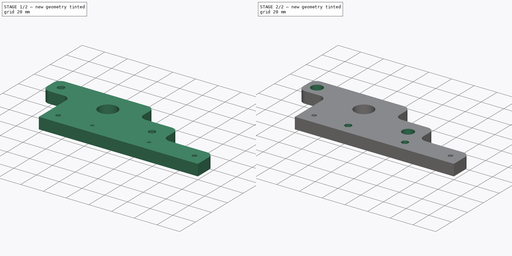
[diagram: build sequence overview — one tinted view per stage of 2, left to right]
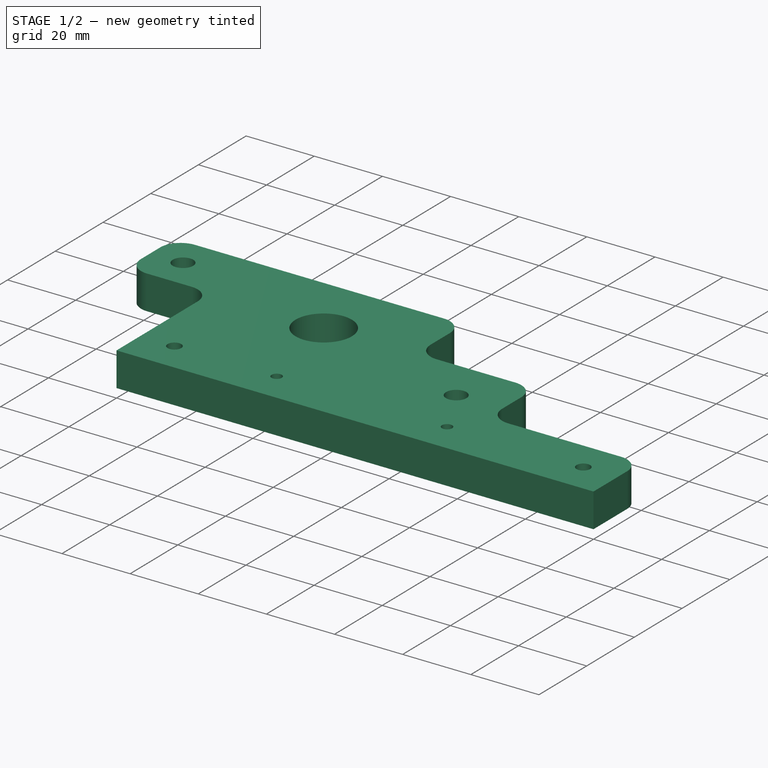
[diagram: stage 1 of 2 — iso view after this stage's code; geometry added in this stage tinted green]
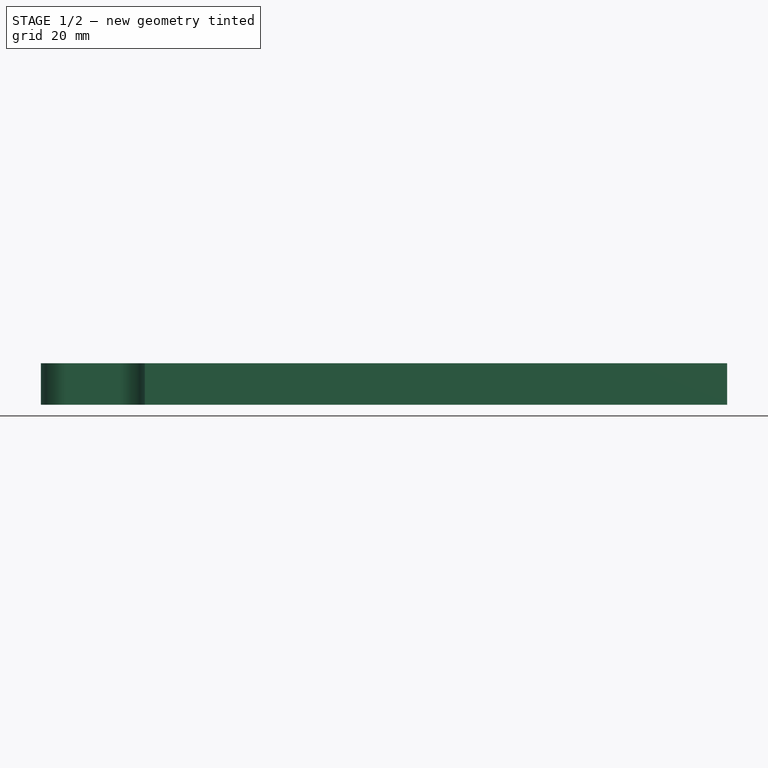
[diagram: stage 1 of 2 — front view after this stage's code; geometry added in this stage tinted green]
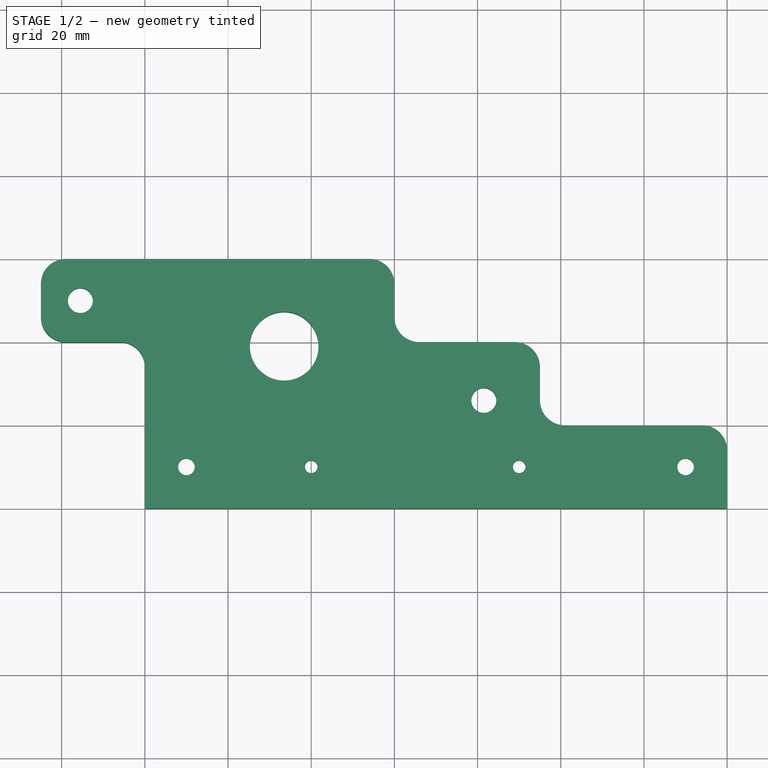
[diagram: stage 1 of 2 — top view after this stage's code; geometry added in this stage tinted green]
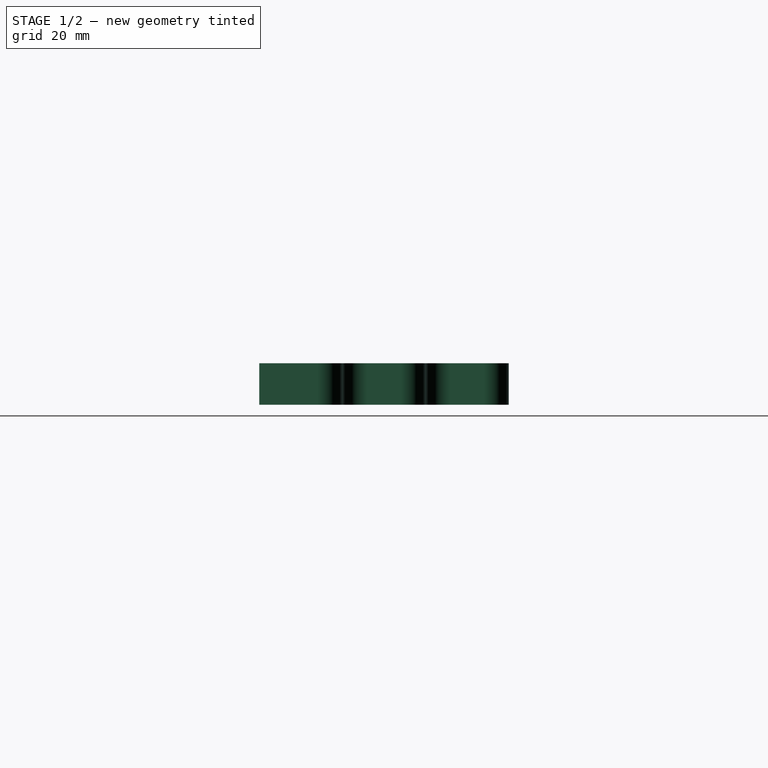
[diagram: stage 1 of 2 — right view after this stage's code; geometry added in this stage tinted green]
FCSTD DOCUMENT  (FreeCAD 0.19R)
Label: motor_support1
License: All rights reserved
LicenseURL: http://en.wikipedia.org/wiki/All_rights_reserved
objects: Sketcher::SketchObject×4, PartDesign::Pocket×3, PartDesign::Pad×1, PartDesign::Body×1
note: 13 computed .brp shape members not serialized (recipe doc carries the construction recipe); baked Part::Feature solids carry a one-line shape summary decoded from their .brp

FEATURE [Sketcher::SketchObject] Sketch
  MapMode = 5
  Support = -> [XY_Plane]
  sketch-geometry (25):
    g0: LineSegment StartX=0 StartY=0 StartZ=0 EndX=0 EndY=34 EndZ=0
    g1: LineSegment StartX=-19 StartY=60 StartZ=0 EndX=54 EndY=60 EndZ=0
    g2: LineSegment StartX=60 StartY=54 StartZ=0 EndX=60 EndY=46 EndZ=0
    g3: LineSegment StartX=140 StartY=14 StartZ=0 EndX=140 EndY=0 EndZ=0
    g4: LineSegment StartX=140 StartY=0 StartZ=0 EndX=0 EndY=0 EndZ=0
    g5: Circle CenterX=10 CenterY=10 CenterZ=0 NormalX=0 NormalY=0 NormalZ=1 AngleXU=0 Radius=2
    g6: Circle CenterX=33.5 CenterY=39 CenterZ=0 NormalX=0 NormalY=0 NormalZ=1 AngleXU=0 Radius=8.25
    g7: Circle CenterX=81.5 CenterY=26 CenterZ=0 NormalX=0 NormalY=0 NormalZ=1 AngleXU=0 Radius=3
    g8: Circle CenterX=130 CenterY=10 CenterZ=0 NormalX=0 NormalY=0 NormalZ=1 AngleXU=0 Radius=2
    g9: ArcOfCircle CenterX=54 CenterY=54 CenterZ=0 NormalX=0 NormalY=0 NormalZ=1 AngleXU=0 Radius=6 StartAngle=0 EndAngle=1.5708
    g10: ArcOfCircle CenterX=66 CenterY=46 CenterZ=0 NormalX=0 NormalY=0 NormalZ=1 AngleXU=0 Radius=6 StartAngle=3.14159 EndAngle=4.71239
    g11: LineSegment StartX=66 StartY=40 StartZ=0 EndX=89 EndY=40 EndZ=0
    g12: LineSegment StartX=95 StartY=34 StartZ=0 EndX=95 EndY=26 EndZ=0
    g13: LineSegment StartX=101 StartY=20 StartZ=0 EndX=134 EndY=20 EndZ=0
    g14: ArcOfCircle CenterX=89 CenterY=34 CenterZ=0 NormalX=0 NormalY=0 NormalZ=1 AngleXU=0 Radius=6 StartAngle=-9e-16 EndAngle=1.5708
    g15: ArcOfCircle CenterX=134 CenterY=14 CenterZ=0 NormalX=0 NormalY=0 NormalZ=1 AngleXU=0 Radius=6 StartAngle=0 EndAngle=1.5708
    g16: ArcOfCircle CenterX=101 CenterY=26 CenterZ=0 NormalX=0 NormalY=0 NormalZ=1 AngleXU=0 Radius=6 StartAngle=3.14159 EndAngle=4.71239
    g17: Circle CenterX=40 CenterY=10 CenterZ=0 NormalX=0 NormalY=0 NormalZ=1 AngleXU=0 Radius=1.5
    g18: Circle CenterX=90 CenterY=10 CenterZ=0 NormalX=0 NormalY=0 NormalZ=1 AngleXU=0 Radius=1.5
    g19: Circle CenterX=-15.5 CenterY=50 CenterZ=0 NormalX=0 NormalY=0 NormalZ=1 AngleXU=0 Radius=3
    g20: LineSegment StartX=-25 StartY=54 StartZ=0 EndX=-25 EndY=46 EndZ=0
    g21: LineSegment StartX=-19 StartY=40 StartZ=0 EndX=-6 EndY=40 EndZ=0
    g22: ArcOfCircle CenterX=-19 CenterY=54 CenterZ=0 NormalX=0 NormalY=0 NormalZ=1 AngleXU=0 Radius=6 StartAngle=1.5708 EndAngle=3.14159
    g23: ArcOfCircle CenterX=-19 CenterY=46 CenterZ=0 NormalX=0 NormalY=0 NormalZ=1 AngleXU=0 Radius=6 StartAngle=3.14159 EndAngle=4.71239
    g24: ArcOfCircle CenterX=-6 CenterY=34 CenterZ=0 NormalX=0 NormalY=0 NormalZ=1 AngleXU=0 Radius=6 StartAngle=2e-16 EndAngle=1.5708
  constraints (66):
    c: Coincident(g-1,g0)
    c: Vertical(g0)
    c: Horizontal(g1)
    c: Vertical(g2)
    c: PointOnObject(g3,g-1)
    c: Vertical(g3)
    c: Coincident(g3,g4)
    c: Coincident(g4,g0)
    c: Distance(g4) = 140
    c: Diameter(g5) = 4
    c: Distance(g5,g0) = 10
    c: Distance(g5,g4) = 10
    c: Diameter(g6) = 16.5
    c: Distance(g6,g4) = 39
    c: Distance(g6,g0) = 33.5
    c: Diameter(g7) = 6
    c: Distance(g8,g3) = 10
    c: Tangent(g1,g9) = 1.5708
    c: Tangent(g2,g9) = 1.5708
    c: Tangent(g2,g10) = -1.5708
    c: Distance(g0,g2) = 60
    c: Distance(g0,g1) = 60
    c: Radius(g9) = 6
    c: Tangent(g10,g11) = -1.5708
    c: Vertical(g12)
    c: Horizontal(g13)
    c: Distance(g0,g13) = 20
    c: Horizontal(g11)
    c: Distance(g0,g12) = 95
    c: Tangent(g11,g14) = 1.5708
    c: Tangent(g12,g14) = 1.5708
    c: Tangent(g3,g15) = 1.5708
    c: Tangent(g13,g15) = 1.5708
    c: Tangent(g12,g16) = -1.5708
    c: Tangent(g13,g16) = -1.5708
    c: DistanceX(g6,g7) = 48
    c: DistanceY(g7,g6) = 13
    c: Equal(g9,g10)
    c: Equal(g9,g14)
    c: Equal(g15,g9)
    c: Equal(g9,g16)
    c: Equal(g5,g8)
    c: Horizontal(g8,g5)
    c: Diameter(g17) = 3
    c: DistanceX(g0,g17) = 40
    c: Equal(g17,g18) = 3
    c: Horizontal(g5,g17)
    c: Horizontal(g5,g18)
    c: DistanceX(g17,g18) = 50
    c: Equal(g19,g7)
    c: DistanceY(g0,g19) = 50
    c: Vertical(g20)
    c: Horizontal(g21)
    c: Tangent(g1,g22) = 1.5708
    c: Tangent(g20,g22) = -1.5708
    c: Tangent(g20,g23) = -1.5708
    c: Tangent(g21,g23) = -1.5708
    c: Tangent(g0,g24) = -1.5708
    c: Tangent(g21,g24) = 1.5708
    c: Equal(g9,g22)
    c: Equal(g22,g23)
    c: Equal(g23,g24)
    c: DistanceX(g20,g0) = 25
    c: DistanceY(g0,g21) = 40
    c: DistanceX(g19,g6) = 49
    c: DistanceY(g0,g10) = 40
FEATURE [PartDesign::Pad] Pad
  Length = 10
  Length2 = 100
  Profile = -> Sketch
  Type = 0
FEATURE [Sketcher::SketchObject] Sketch004  label="SketchTopPocket"
  MapMode = 5
  Support = -> [XY_Plane]
  sketch-geometry (4):
    g0: Circle CenterX=10 CenterY=10 CenterZ=0 NormalX=0 NormalY=0 NormalZ=1 AngleXU=0 Radius=3.5
    g1: Circle CenterX=40 CenterY=10 CenterZ=0 NormalX=0 NormalY=0 NormalZ=1 AngleXU=0 Radius=2.8
    g2: Circle CenterX=130 CenterY=10 CenterZ=0 NormalX=0 NormalY=0 NormalZ=1 AngleXU=0 Radius=3.5
    g3: Circle CenterX=90 CenterY=10 CenterZ=0 NormalX=0 NormalY=0 NormalZ=1 AngleXU=0 Radius=2.8
  constraints (12):
    c: DistanceY(g-1,g0) = 10
    c: Horizontal(g0,g1)
    c: Horizontal(g1,g3)
    c: Horizontal(g3,g2)
    c: Diameter(g0) = 7
    c: Equal(g0,g2)
    c: Diameter(g1) = 5.6
    c: Equal(g1,g3)
    c: DistanceX(g-1,g0) = 10
    c: DistanceX(g-1,g1) = 40
    c: DistanceX(g1,g3) = 50
    c: DistanceX(g-1,g2) = 130
FEATURE [PartDesign::Pocket] Pocket
  BaseFeature = -> Pad
  Length = 4
  Length2 = 100
  Profile = -> Sketch004
  Reversed = true
  Type = 0
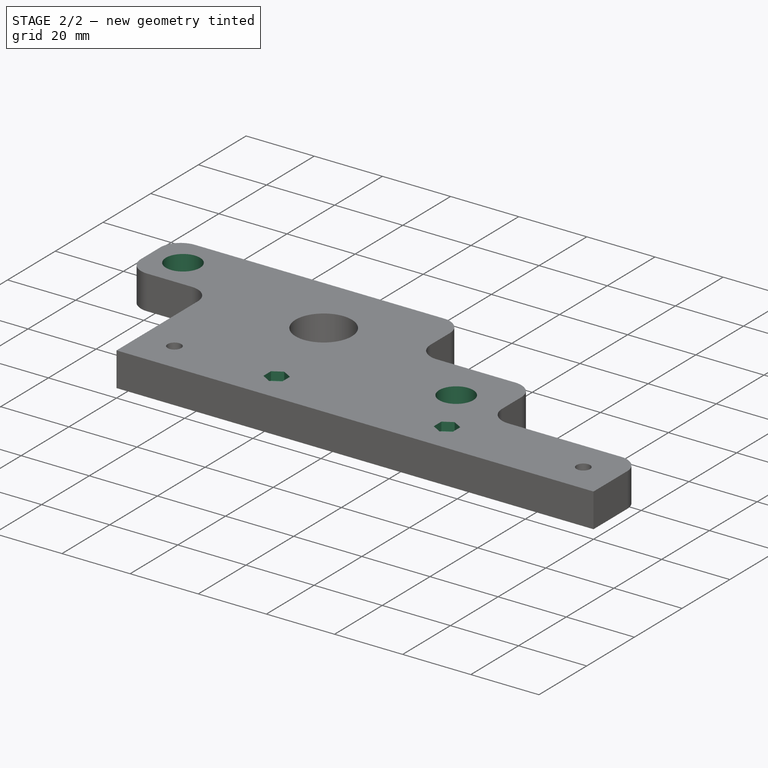
[diagram: stage 2 of 2 — iso view after this stage's code; geometry added in this stage tinted green]
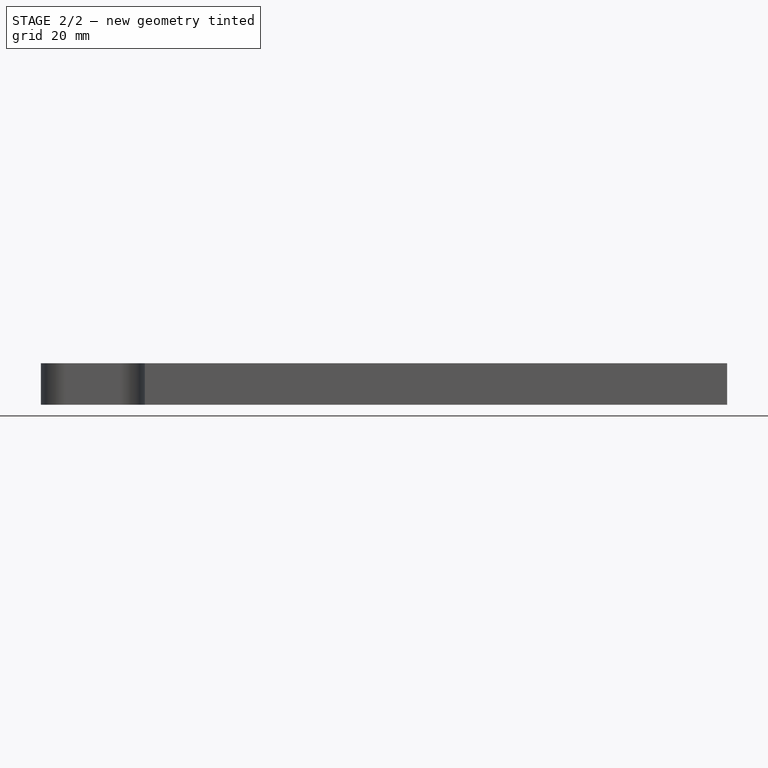
[diagram: stage 2 of 2 — front view after this stage's code; geometry added in this stage tinted green]
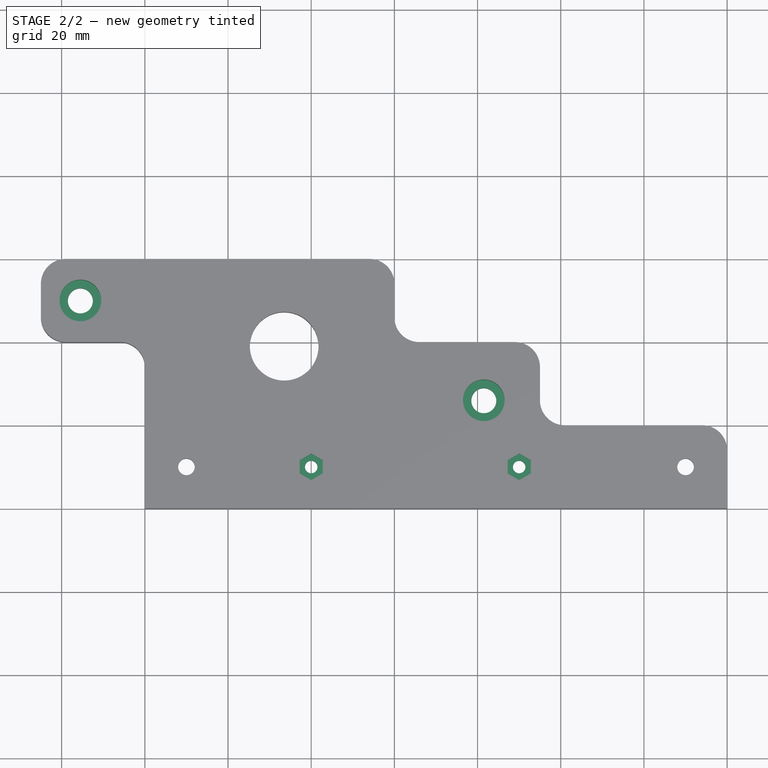
[diagram: stage 2 of 2 — top view after this stage's code; geometry added in this stage tinted green]
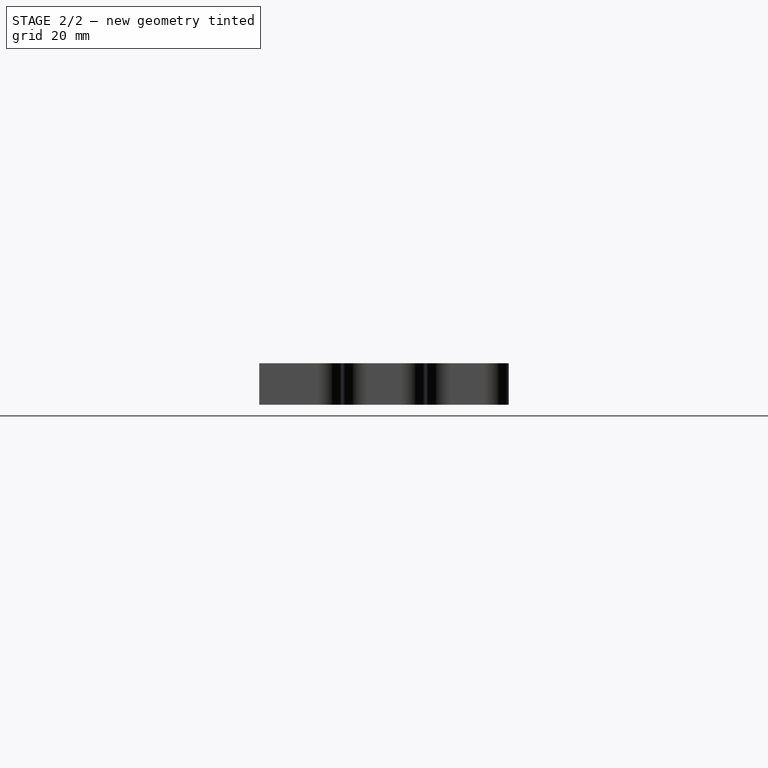
[diagram: stage 2 of 2 — right view after this stage's code; geometry added in this stage tinted green]
FEATURE [Sketcher::SketchObject] Sketch005  label="SketchBottomPocket"
  MapMode = 5
  Placement = pos=(0,0,10) rot=(0,0,1;0rad)
  Support = -> [Pocket]
  sketch-geometry (14):
    g0: LineSegment StartX=40 StartY=6.8 StartZ=0 EndX=42.7713 EndY=8.4 EndZ=0
    g1: LineSegment StartX=42.7713 StartY=8.4 StartZ=0 EndX=42.7713 EndY=11.6 EndZ=0
    g2: LineSegment StartX=42.7713 StartY=11.6 StartZ=0 EndX=40 EndY=13.2 EndZ=0
    g3: LineSegment StartX=40 StartY=13.2 StartZ=0 EndX=37.2287 EndY=11.6 EndZ=0
    g4: LineSegment StartX=37.2287 StartY=11.6 StartZ=0 EndX=37.2287 EndY=8.4 EndZ=0
    g5: LineSegment StartX=37.2287 StartY=8.4 StartZ=0 EndX=40 EndY=6.8 EndZ=0
    g6: Circle [constr] CenterX=40 CenterY=10 CenterZ=0 NormalX=0 NormalY=0 NormalZ=1 AngleXU=0 Radius=3.2
    g7: LineSegment StartX=90 StartY=6.8 StartZ=0 EndX=92.7713 EndY=8.4 EndZ=0
    g8: LineSegment StartX=92.7713 StartY=8.4 StartZ=0 EndX=92.7713 EndY=11.6 EndZ=0
    g9: LineSegment StartX=92.7713 StartY=11.6 StartZ=0 EndX=90 EndY=13.2 EndZ=0
    g10: LineSegment StartX=90 StartY=13.2 StartZ=0 EndX=87.2287 EndY=11.6 EndZ=0
    g11: LineSegment StartX=87.2287 StartY=11.6 StartZ=0 EndX=87.2287 EndY=8.4 EndZ=0
    g12: LineSegment StartX=87.2287 StartY=8.4 StartZ=0 EndX=90 EndY=6.8 EndZ=0
    g13: Circle [constr] CenterX=90 CenterY=10 CenterZ=0 NormalX=0 NormalY=0 NormalZ=1 AngleXU=0 Radius=3.2
  constraints (34):
    c: Coincident(g0,g1)
    c: Coincident(g1,g2)
    c: Coincident(g2,g3)
    c: Coincident(g3,g4)
    c: Coincident(g4,g5)
    c: Coincident(g5,g0)
    c: Equal(g0, g1-g5) x5
    c: PointOnObject(g0,g6)
    c: PointOnObject(g1,g6)
    c: PointOnObject(g2,g6)
    c: PointOnObject(g3,g6)
    c: PointOnObject(g4,g6)
    c: PointOnObject(g5,g6)
    c: Diameter(g6) = 6.4
    c: Coincident(g7,g8)
    c: Coincident(g8,g9)
    c: Coincident(g9,g10)
    c: Coincident(g10,g11)
    c: Coincident(g11,g12)
    c: Coincident(g12,g7)
    c: Equal(g7, g8-g12) x5
    c: PointOnObject(g7,g13)
    c: PointOnObject(g8,g13)
    c: PointOnObject(g9,g13)
    c: PointOnObject(g10,g13)
    c: PointOnObject(g11,g13)
    c: PointOnObject(g12,g13)
    c: Equal(g6,g13) = 6.4
    c: DistanceX(g6,g13) = 50
    c: DistanceY(g-1,g6) = 10
    c: Parallel(g4,g-2)
    c: Parallel(g11,g-2)
    c: Horizontal(g13,g6)
    c: DistanceX(g-1,g6) = 40
FEATURE [PartDesign::Pocket] Pocket001
  BaseFeature = -> Pocket
  Length = 2.5
  Length2 = 100
  Profile = -> Sketch005
  Type = 0
FEATURE [Sketcher::SketchObject] Sketch006  label="SketchBottomPocket1"
  MapMode = 5
  Placement = pos=(0,0,10) rot=(0,0,1;0rad)
  Support = -> [Pocket]
  sketch-geometry (2):
    g0: Circle CenterX=81.5 CenterY=26 CenterZ=0 NormalX=0 NormalY=0 NormalZ=1 AngleXU=0 Radius=5
    g1: Circle CenterX=-15.5 CenterY=50 CenterZ=0 NormalX=0 NormalY=0 NormalZ=1 AngleXU=0 Radius=5
  constraints (6):
    c: DistanceX(g-1,g0) = 81.5
    c: DistanceY(g-1,g0) = 26
    c: Diameter(g0) = 10
    c: Equal(g1,g0)
    c: DistanceX(g1,g0) = 97
    c: DistanceY(g-1,g1) = 50
FEATURE [PartDesign::Pocket] Pocket002
  BaseFeature = -> Pocket001
  Length = 6
  Length2 = 100
  Profile = -> Sketch006
  Type = 0
FEATURE [PartDesign::Body] Body
  Group = -> [Sketch,Pad,Sketch004,Pocket,Sketch005,Pocket001,Pocket002]
  Origin = -> Origin
  Tip = -> Pocket002
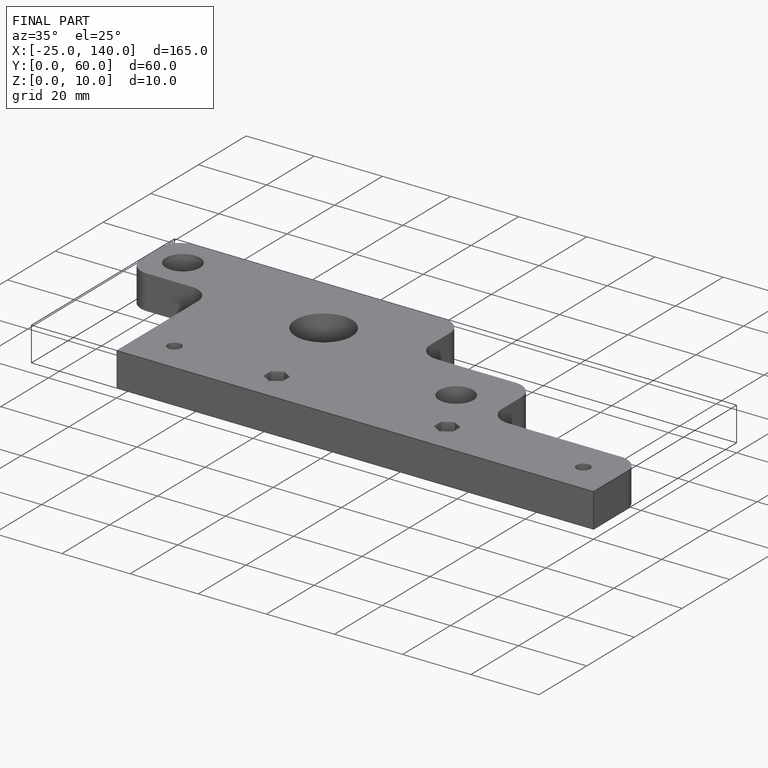
[diagram: finished part — iso view with bounding-box wireframe]
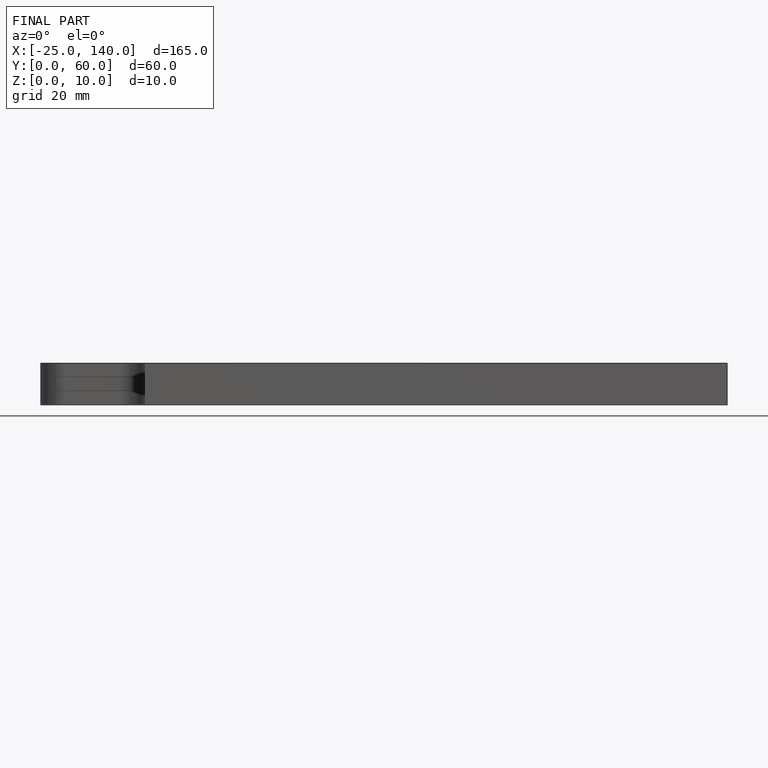
[diagram: finished part — front view with bounding-box wireframe]
